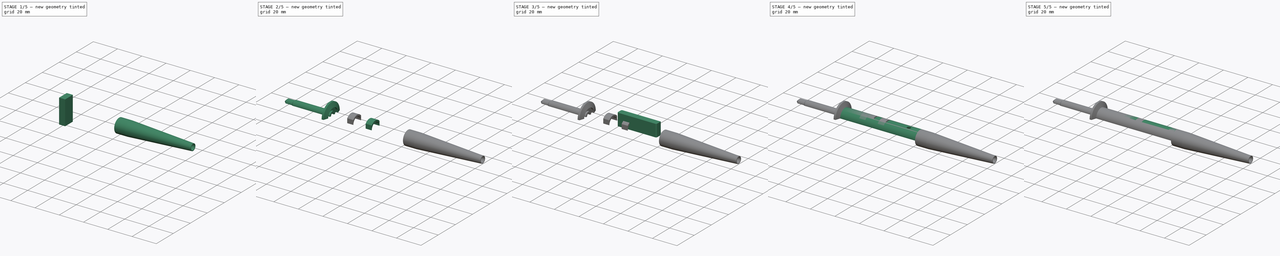
[diagram: build sequence overview — one tinted view per stage of 5, left to right]
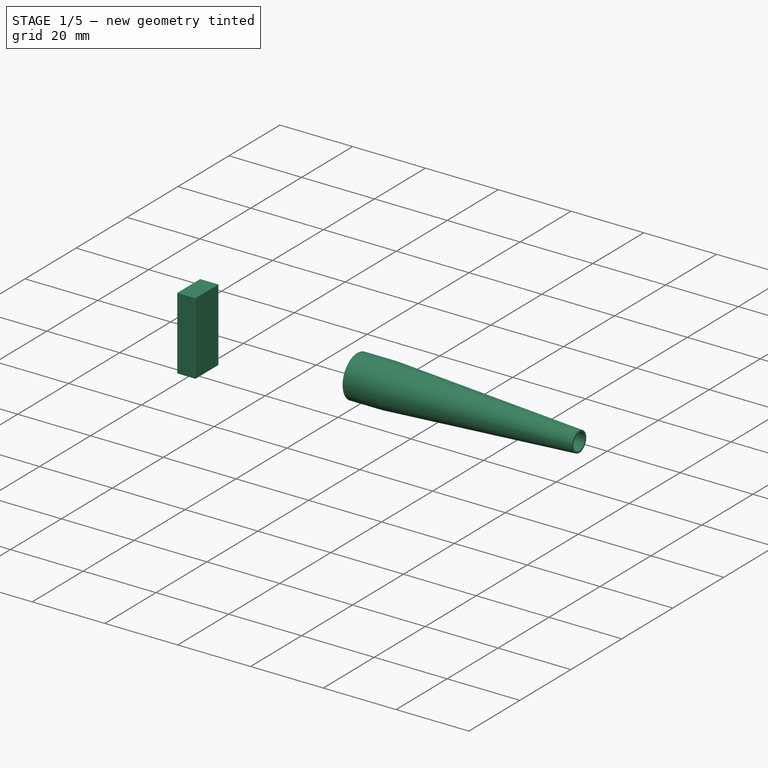
[diagram: stage 1 of 5 — iso view after this stage's code; geometry added in this stage tinted green]
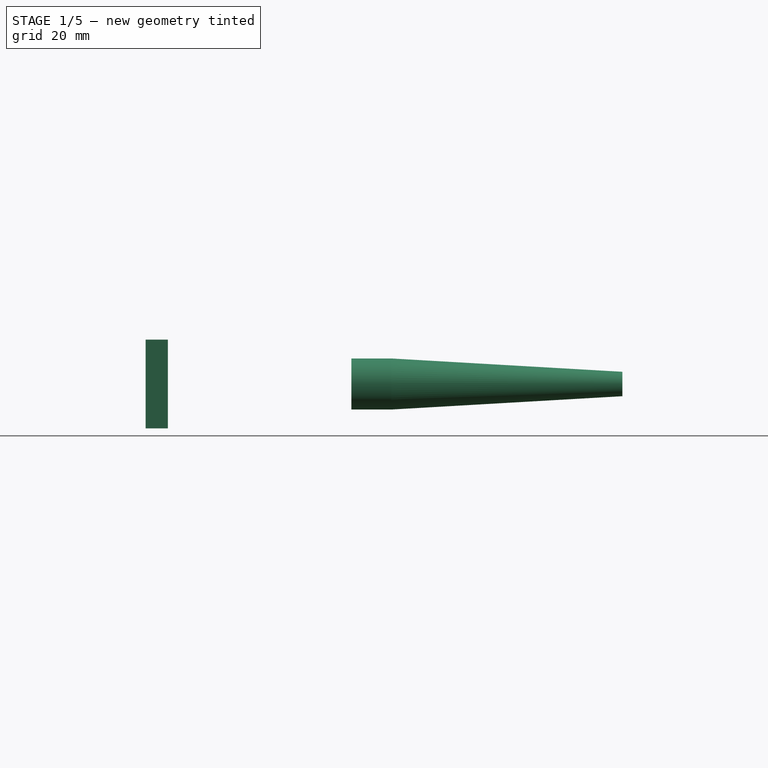
[diagram: stage 1 of 5 — front view after this stage's code; geometry added in this stage tinted green]
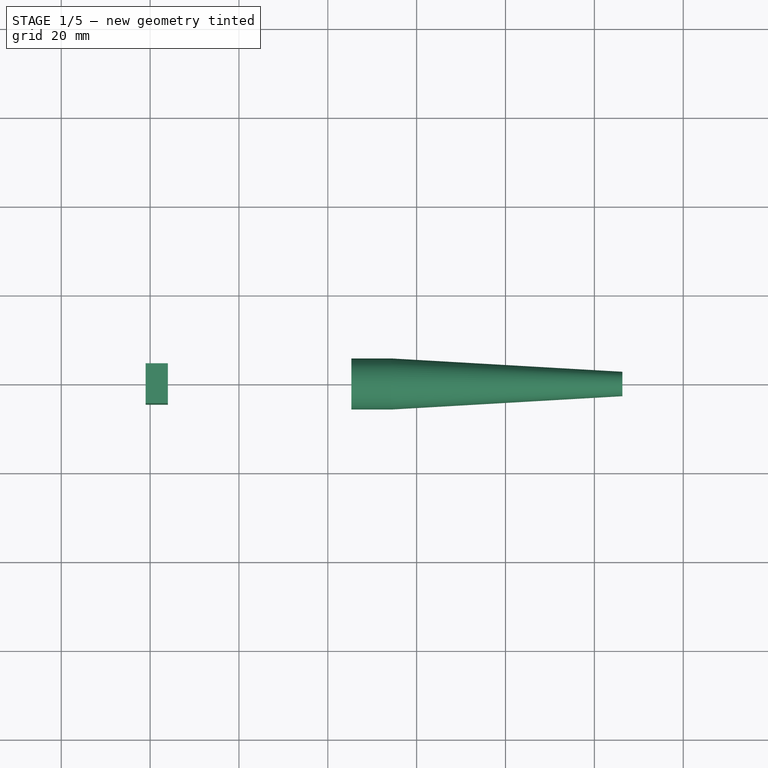
[diagram: stage 1 of 5 — top view after this stage's code; geometry added in this stage tinted green]
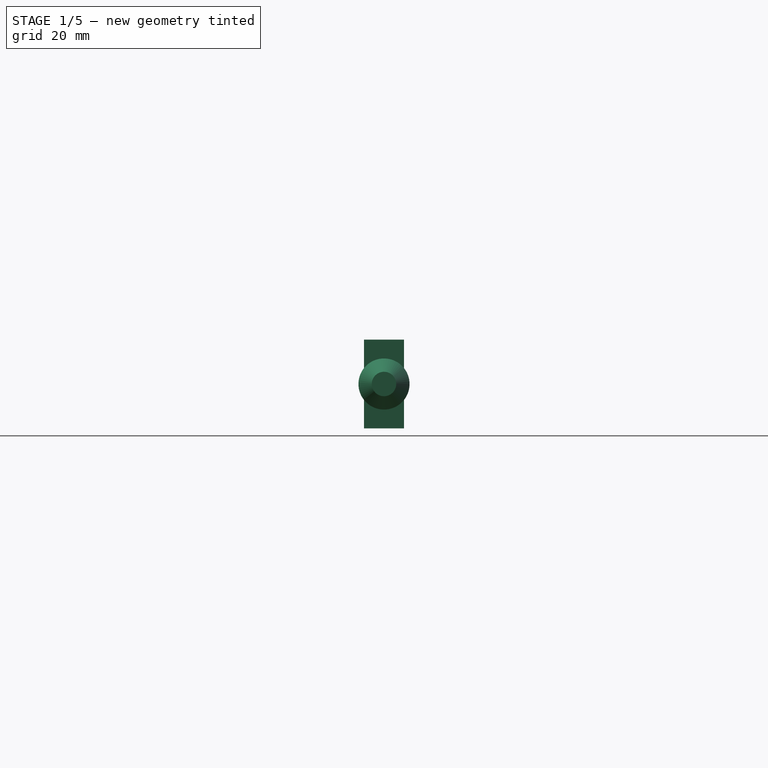
[diagram: stage 1 of 5 — right view after this stage's code; geometry added in this stage tinted green]
FCSTD DOCUMENT  (FreeCAD 0.19R24291 (Git))
Label: FlukeProbe040_Final
License: All rights reserved
LicenseURL: http://en.wikipedia.org/wiki/All_rights_reserved
objects: Sketcher::SketchObject×13, PartDesign::Body×12, PartDesign::Revolution×6, PartDesign::Pad×6, PartDesign::Boolean×6, PartDesign::Fillet×6, PartDesign::Pocket×1
note: 69 computed .brp shape members not serialized (recipe doc carries the construction recipe); baked Part::Feature solids carry a one-line shape summary decoded from their .brp

FEATURE [PartDesign::Body] Body009  label="BoolRED001"
  Group = -> [Sketch008,Pad003]
  Origin = -> Origin008
  Tip = -> Pad003
FEATURE [Sketcher::SketchObject] Sketch009
  FullyConstrained = true
  MapMode = 5
  Support = -> [XY_Plane010]
  sketch-geometry (4):
    g0: LineSegment StartX=19 StartY=4.5 StartZ=0 EndX=24 EndY=4.5 EndZ=0
    g1: LineSegment StartX=24 StartY=4.5 StartZ=0 EndX=24 EndY=-4.5 EndZ=0
    g2: LineSegment StartX=24 StartY=-4.5 StartZ=0 EndX=19 EndY=-4.5 EndZ=0
    g3: LineSegment StartX=19 StartY=-4.5 StartZ=0 EndX=19 EndY=4.5 EndZ=0
  constraints (11):
    c: Coincident(g0,g1)
    c: Coincident(g1,g2)
    c: Coincident(g2,g3)
    c: Coincident(g3,g0)
    c: Horizontal(g0)
    c: Horizontal(g2)
    c: Vertical(g1)
    c: DistanceX(g0,g0) = 5
    c: Symmetric(g0,g2,g-1)
    c: DistanceX(g-1,g0) = 19
    c: DistanceY(g1,g0) = 9
FEATURE [PartDesign::Pad] Pad004
  Direction = (1,1,1)
  Length = 10
  Length2 = 10
  Profile = -> Sketch009
  Type = 4
FEATURE [PartDesign::Body] Body007  label="RedWindow"
  Group = -> [Sketch007,Revolution003,Boolean004,Boolean003]
  Origin = -> Origin007
  Placement = pos=(0,0,0) rot=(1,0,0;3.14159rad)
  Tip = -> Boolean003
FEATURE [Sketcher::SketchObject] Sketch010
  FullyConstrained = false
  MapMode = 5
  Support = -> [XY_Plane012]
  sketch-geometry (9):
    g0: LineSegment StartX=4.34286 StartY=5.75 StartZ=0 EndX=65.3429 EndY=5.75 EndZ=0
    g1: LineSegment StartX=65.3429 StartY=5.75 StartZ=0 EndX=65.3429 EndY=3 EndZ=0
    g2: LineSegment StartX=2.8205 StartY=4.49803 StartZ=0 EndX=64.3429 EndY=4.5 EndZ=0
    g3: LineSegment StartX=64.3429 StartY=4.5 StartZ=0 EndX=64.3429 EndY=2 EndZ=0
    g4: LineSegment StartX=65.3429 StartY=3 StartZ=0 EndX=74.3429 EndY=3 EndZ=0
    g5: LineSegment StartX=74.3429 StartY=3 StartZ=0 EndX=74.3429 EndY=2 EndZ=0
    g6: LineSegment StartX=74.3429 StartY=2 StartZ=0 EndX=64.3429 EndY=2 EndZ=0
    g7: LineSegment StartX=4.34286 StartY=5.75 StartZ=0 EndX=2.79677 EndY=5.70723 EndZ=0
    g8: LineSegment StartX=2.79677 StartY=5.70723 StartZ=0 EndX=2.8205 EndY=4.49803 EndZ=0
  constraints (2):
    c: Coincident(g7,g8)
    c: Coincident(g8,g2)
FEATURE [PartDesign::Revolution] Revolution004
  Angle = 180
  Axis = (1,0,0)
  Base = (0,0,0)
  Profile = -> Sketch010
  ReferenceAxis = -> X_Axis010
FEATURE [Sketcher::SketchObject] Sketch012
  FullyConstrained = true
  MapMode = 5
  Support = -> [XY_Plane013]
  sketch-geometry (4):
    g0: LineSegment StartX=19 StartY=4.5 StartZ=0 EndX=24 EndY=4.5 EndZ=0
    g1: LineSegment StartX=24 StartY=4.5 StartZ=0 EndX=24 EndY=-4.5 EndZ=0
    g2: LineSegment StartX=24 StartY=-4.5 StartZ=0 EndX=19 EndY=-4.5 EndZ=0
    g3: LineSegment StartX=19 StartY=-4.5 StartZ=0 EndX=19 EndY=4.5 EndZ=0
  constraints (11):
    c: Coincident(g0,g1)
    c: Coincident(g1,g2)
    c: Coincident(g2,g3)
    c: Coincident(g3,g0)
    c: Horizontal(g0)
    c: Horizontal(g2)
    c: Vertical(g1)
    c: DistanceX(g0,g0) = 5
    c: Symmetric(g0,g2,g-1)
    c: DistanceX(g-1,g0) = 19
    c: DistanceY(g1,g0) = 9
FEATURE [PartDesign::Pad] Pad006
  Direction = (1,1,1)
  Length = 10
  Length2 = 10
  Profile = -> Sketch012
  Type = 4
FEATURE [PartDesign::Body] Body011  label="BoolGRN002"
  Group = -> [Sketch012,Pad006]
  Origin = -> Origin012
  Tip = -> Pad006
FEATURE [PartDesign::Boolean] Boolean006  label="GreenWindowBool"
  BaseFeature = -> Revolution004
  Group = -> [Body011]
  Type = 2
FEATURE [PartDesign::Body] Body010  label="GreenWindow"
  Group = -> [Sketch010,Revolution004,Boolean006]
  Origin = -> Origin010
  Placement = pos=(0,0,0) rot=(1,0,0;3.14159rad)
  Tip = -> Boolean006
FEATURE [Sketcher::SketchObject] Sketch013
  FullyConstrained = false
  MapMode = 5
  Support = -> [XY_Plane014]
  sketch-geometry (7):
    g0: LineSegment StartX=65.3 StartY=3 StartZ=0 EndX=65.3 EndY=5.75 EndZ=0
    g1: LineSegment StartX=65.3 StartY=5.75 StartZ=0 EndX=74.2774 EndY=5.75 EndZ=0
    g2: LineSegment StartX=74.2774 StartY=5.75 StartZ=0 EndX=126.3 EndY=2.75 EndZ=0
    g3: LineSegment StartX=126.3 StartY=2.75 StartZ=0 EndX=126.3 EndY=2.25 EndZ=0
    g4: LineSegment StartX=126.3 StartY=2.25 StartZ=0 EndX=109.936 EndY=2.25 EndZ=0
    g5: LineSegment StartX=109.936 StartY=2.25 StartZ=0 EndX=74.2774 EndY=3 EndZ=0
    g6: LineSegment StartX=74.2774 StartY=3 StartZ=0 EndX=65.3 EndY=3 EndZ=0
  constraints (19):
    c: Vertical(g0)
    c: Coincident(g0,g1)
    c: Horizontal(g1)
    c: Coincident(g1,g2)
    c: Coincident(g2,g3)
    c: Coincident(g3,g4)
    c: Horizontal(g4)
    c: Coincident(g4,g5)
    c: Coincident(g5,g6)
    c: Coincident(g6,g0)
    c: Horizontal(g6)
    c: DistanceY(g-1,g0) = 3
    c: DistanceY(g-1,g0) = 5.75
    c: DistanceX(g-1,g0) = 65.3
    c: DistanceX(g1,g5) = 0
    c: DistanceY(g-1,g3) = 2.25
    c: DistanceX(g2,g3) = 0
    c: DistanceX(g0,g2) = 61
    c: DistanceY(g3,g2) = 0.5
FEATURE [PartDesign::Revolution] Revolution005
  Angle = 360
  Axis = (1,0,0)
  Base = (0,0,0)
  Profile = -> Sketch013
  ReferenceAxis = -> X_Axis013
FEATURE [PartDesign::Body] Body012  label="CableGuide"
  Group = -> [Sketch013,Revolution005]
  Origin = -> Origin013
  Tip = -> Revolution005
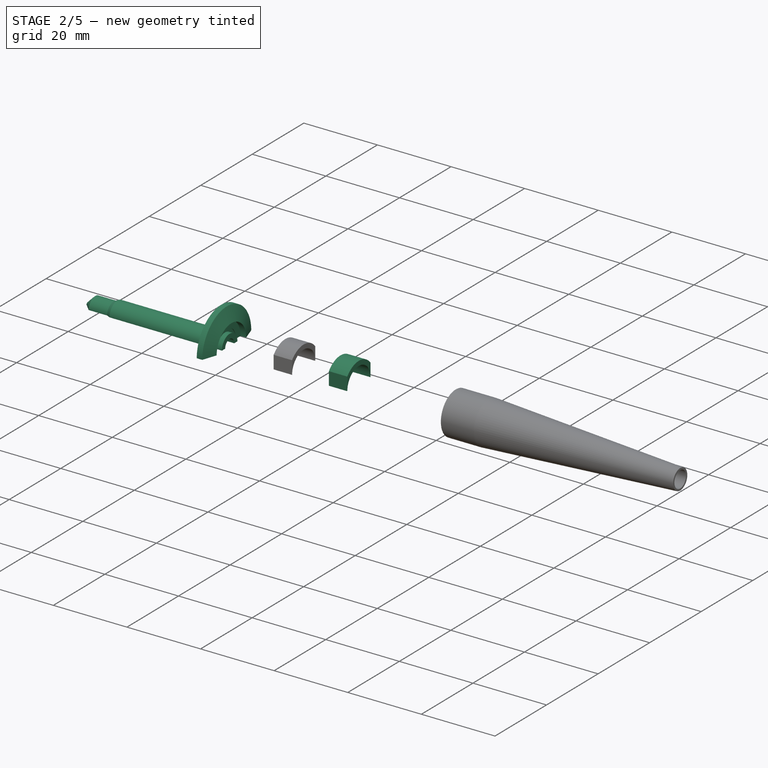
[diagram: stage 2 of 5 — iso view after this stage's code; geometry added in this stage tinted green]
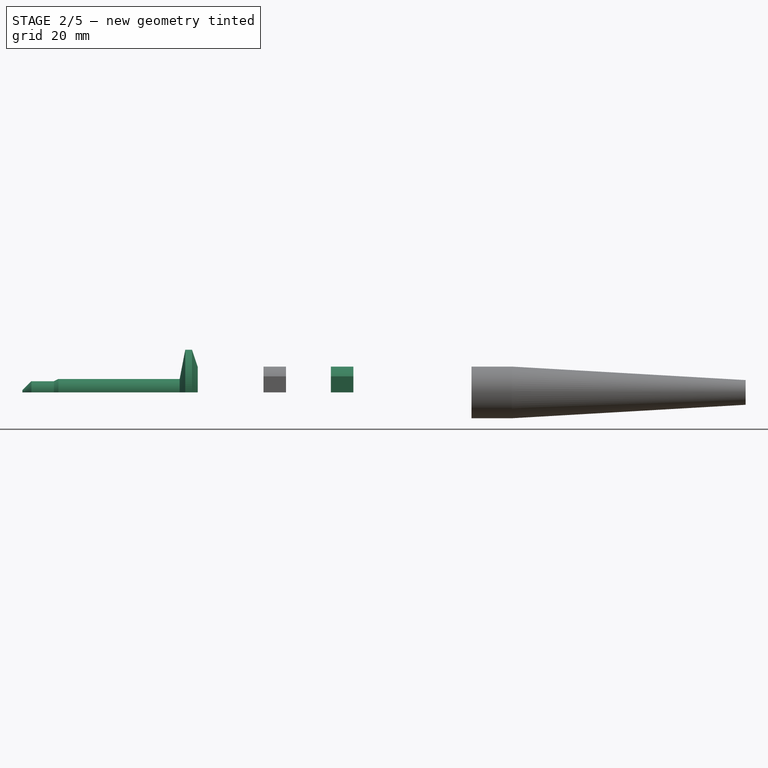
[diagram: stage 2 of 5 — front view after this stage's code; geometry added in this stage tinted green]
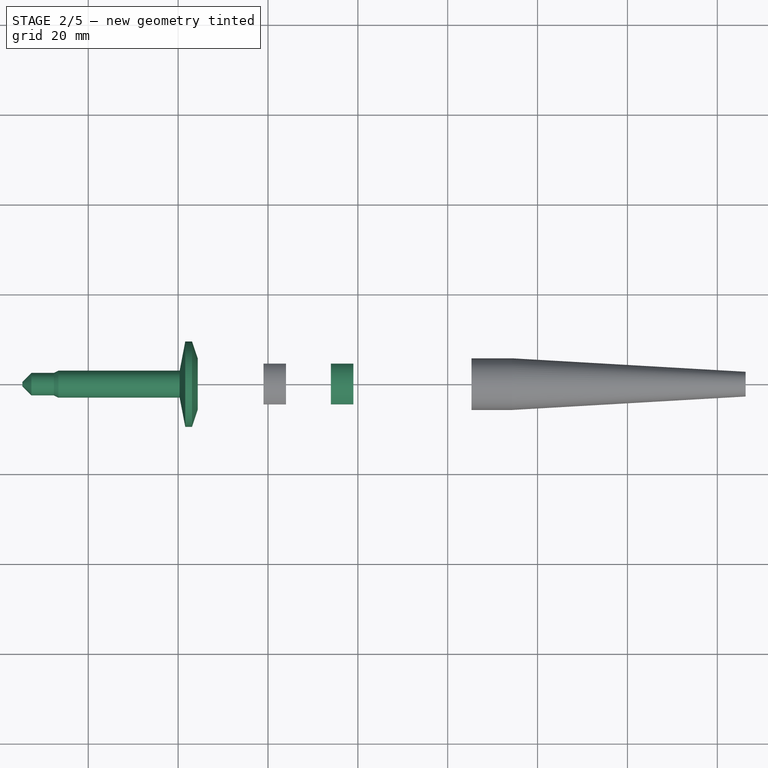
[diagram: stage 2 of 5 — top view after this stage's code; geometry added in this stage tinted green]
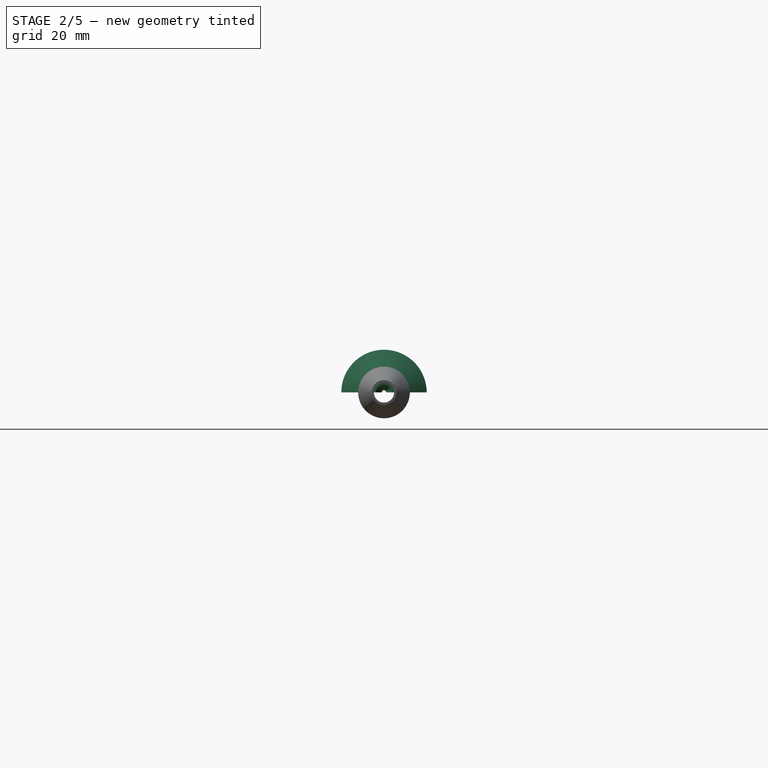
[diagram: stage 2 of 5 — right view after this stage's code; geometry added in this stage tinted green]
FEATURE [Sketcher::SketchObject] Sketch001
  FullyConstrained = false
  MapMode = 5
  Support = -> [XY_Plane002]
  sketch-geometry (16):
    g0: LineSegment StartX=-34.6571 StartY=0.5 StartZ=0 EndX=-32.6571 EndY=2.5 EndZ=0
    g1: LineSegment StartX=-27.6571 StartY=2.5 StartZ=0 EndX=-26.6571 EndY=3 EndZ=0
    g2: LineSegment StartX=-26.6571 StartY=3 StartZ=0 EndX=0.342857 EndY=3 EndZ=0
    g3: LineSegment StartX=0.342857 StartY=3 StartZ=0 EndX=1.59286 EndY=9.5 EndZ=0
    g4: LineSegment StartX=1.59286 StartY=9.5 StartZ=0 EndX=3.09286 EndY=9.5 EndZ=0
    g5: LineSegment StartX=3.09286 StartY=9.5 StartZ=0 EndX=4.35759 EndY=5.71776 EndZ=0
    g6: LineSegment StartX=-34.6571 StartY=0.5 StartZ=0 EndX=-26.8203 EndY=0.5 EndZ=0
    g7: LineSegment StartX=-26.8203 StartY=0.5 StartZ=0 EndX=-24.3203 EndY=1.75 EndZ=0
    g8: LineSegment StartX=-24.3203 StartY=1.75 StartZ=0 EndX=3.89419 EndY=1.75 EndZ=0
    g9: LineSegment StartX=3.89419 StartY=1.75 StartZ=0 EndX=3.89419 EndY=3 EndZ=0
    g10: LineSegment StartX=3.89419 StartY=3 StartZ=0 EndX=2.64252 EndY=3 EndZ=0
    g11: LineSegment StartX=2.64252 StartY=3 StartZ=0 EndX=2.64252 EndY=3.94243 EndZ=0
    g12: LineSegment StartX=2.64252 StartY=3.94243 StartZ=0 EndX=2.84201 EndY=3.94243 EndZ=0
    g13: LineSegment StartX=-32.6571 StartY=2.5 StartZ=0 EndX=-27.6571 EndY=2.5 EndZ=0
    g14: LineSegment StartX=2.84201 StartY=5.71776 StartZ=0 EndX=4.35759 EndY=5.71776 EndZ=0
    g15: LineSegment StartX=2.84201 StartY=3.94243 StartZ=0 EndX=2.84201 EndY=5.71776 EndZ=0
  constraints (1):
    c: Coincident(g14,g5)
FEATURE [PartDesign::Revolution] Revolution001
  Angle = 180
  Axis = (1,0,0)
  Base = (0,0,0)
  Profile = -> Sketch001
  ReferenceAxis = -> X_Axis002
FEATURE [PartDesign::Body] Body002  label="Front"
  Group = -> [Sketch001,Revolution001,Fillet005]
  Origin = -> Origin002
  Placement = pos=(0,0,0) rot=(1,0,0;3.14159rad)
  Tip = -> Fillet005
FEATURE [Sketcher::SketchObject] Sketch007
  FullyConstrained = false
  MapMode = 5
  Support = -> [XY_Plane009]
  sketch-geometry (9):
    g0: LineSegment StartX=4.34286 StartY=5.75 StartZ=0 EndX=65.3429 EndY=5.75 EndZ=0
    g1: LineSegment StartX=65.3429 StartY=5.75 StartZ=0 EndX=65.3429 EndY=3 EndZ=0
    g2: LineSegment StartX=2.8205 StartY=4.49803 StartZ=0 EndX=64.3429 EndY=4.5 EndZ=0
    g3: LineSegment StartX=64.3429 StartY=4.5 StartZ=0 EndX=64.3429 EndY=2 EndZ=0
    g4: LineSegment StartX=65.3429 StartY=3 StartZ=0 EndX=74.3429 EndY=3 EndZ=0
    g5: LineSegment StartX=74.3429 StartY=3 StartZ=0 EndX=74.3429 EndY=2 EndZ=0
    g6: LineSegment StartX=74.3429 StartY=2 StartZ=0 EndX=64.3429 EndY=2 EndZ=0
    g7: LineSegment StartX=4.34286 StartY=5.75 StartZ=0 EndX=2.79677 EndY=5.70723 EndZ=0
    g8: LineSegment StartX=2.79677 StartY=5.70723 StartZ=0 EndX=2.8205 EndY=4.49803 EndZ=0
  constraints (2):
    c: Coincident(g7,g8)
    c: Coincident(g8,g2)
FEATURE [Sketcher::SketchObject] Sketch008
  FullyConstrained = true
  MapMode = 5
  Support = -> [XY_Plane008]
  sketch-geometry (4):
    g0: LineSegment StartX=34 StartY=4.5 StartZ=0 EndX=39 EndY=4.5 EndZ=0
    g1: LineSegment StartX=39 StartY=4.5 StartZ=0 EndX=39 EndY=-4.5 EndZ=0
    g2: LineSegment StartX=39 StartY=-4.5 StartZ=0 EndX=34 EndY=-4.5 EndZ=0
    g3: LineSegment StartX=34 StartY=-4.5 StartZ=0 EndX=34 EndY=4.5 EndZ=0
  constraints (11):
    c: Coincident(g0,g1)
    c: Coincident(g1,g2)
    c: Coincident(g2,g3)
    c: Coincident(g3,g0)
    c: Horizontal(g0)
    c: Horizontal(g2)
    c: Vertical(g1)
    c: DistanceX(g0,g0) = 5
    c: DistanceY(g1,g0) = 9
    c: Symmetric(g0,g2,g-1)
    c: DistanceX(g-1,g0) = 34
FEATURE [PartDesign::Pad] Pad003
  Direction = (1,1,1)
  Length = 10
  Length2 = 10
  Profile = -> Sketch008
  Type = 4
FEATURE [PartDesign::Revolution] Revolution003
  Angle = 180
  Axis = (1,0,0)
  Base = (0,0,0)
  Profile = -> Sketch007
  ReferenceAxis = -> X_Axis007
FEATURE [PartDesign::Body] Body008  label="BoolGRN001"
  Group = -> [Sketch009,Pad004]
  Origin = -> Origin009
  Tip = -> Pad004
FEATURE [PartDesign::Boolean] Boolean004
  BaseFeature = -> Revolution003
  Group = -> [Body008]
  Type = 1
FEATURE [PartDesign::Boolean] Boolean003  label="RedWindowBool"
  BaseFeature = -> Boolean004
  Group = -> [Body009]
  Type = 2
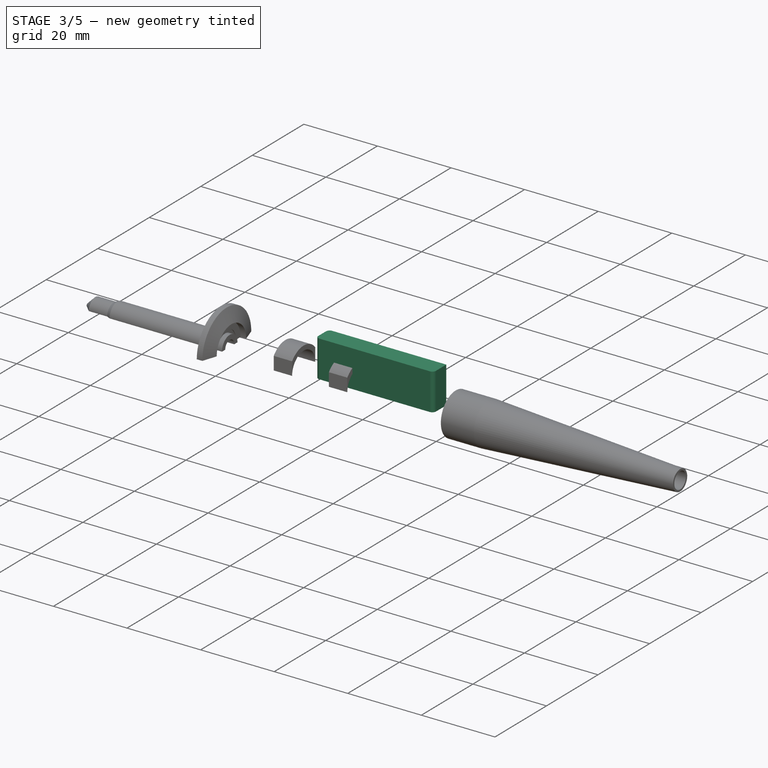
[diagram: stage 3 of 5 — iso view after this stage's code; geometry added in this stage tinted green]
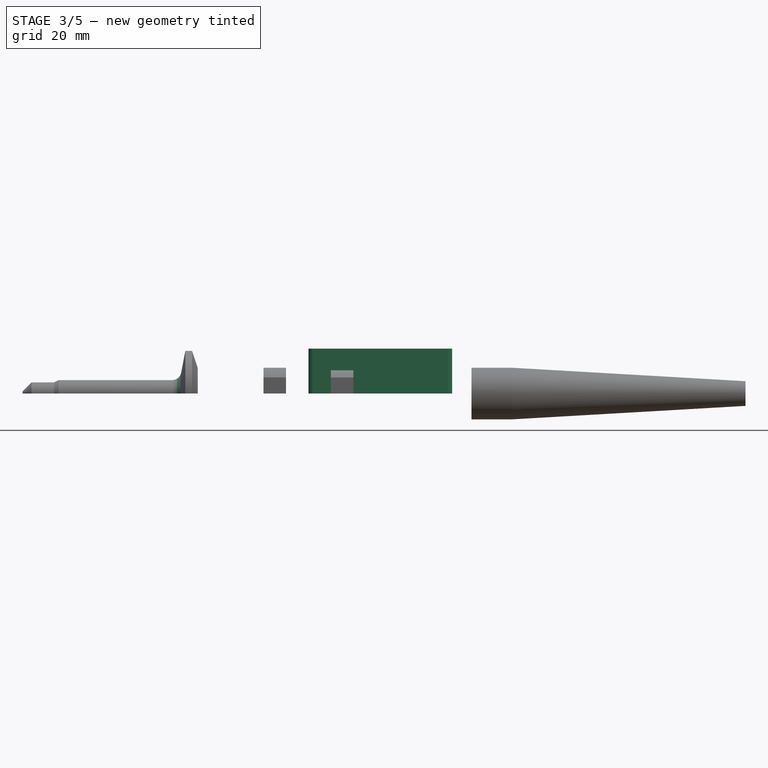
[diagram: stage 3 of 5 — front view after this stage's code; geometry added in this stage tinted green]
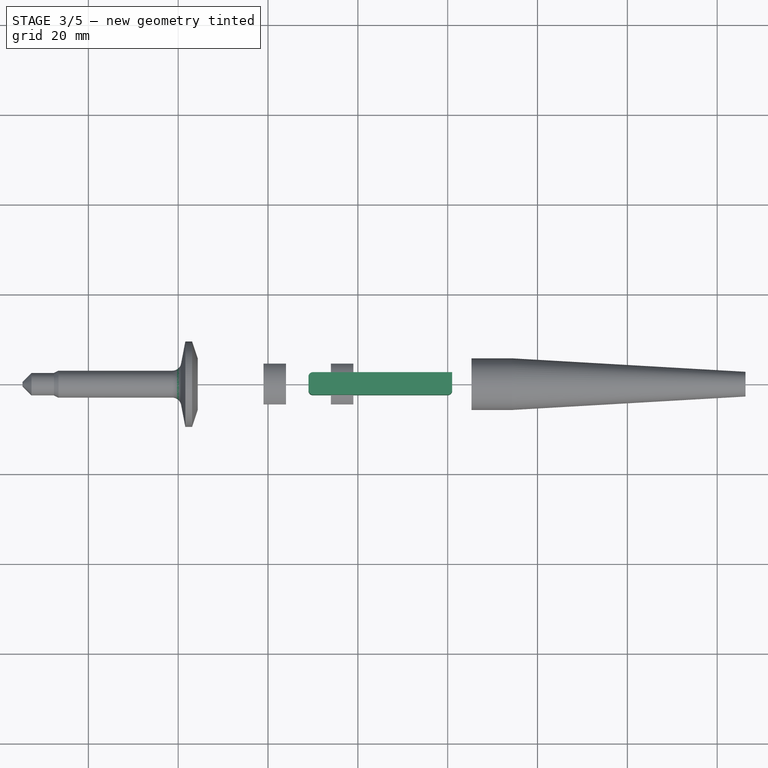
[diagram: stage 3 of 5 — top view after this stage's code; geometry added in this stage tinted green]
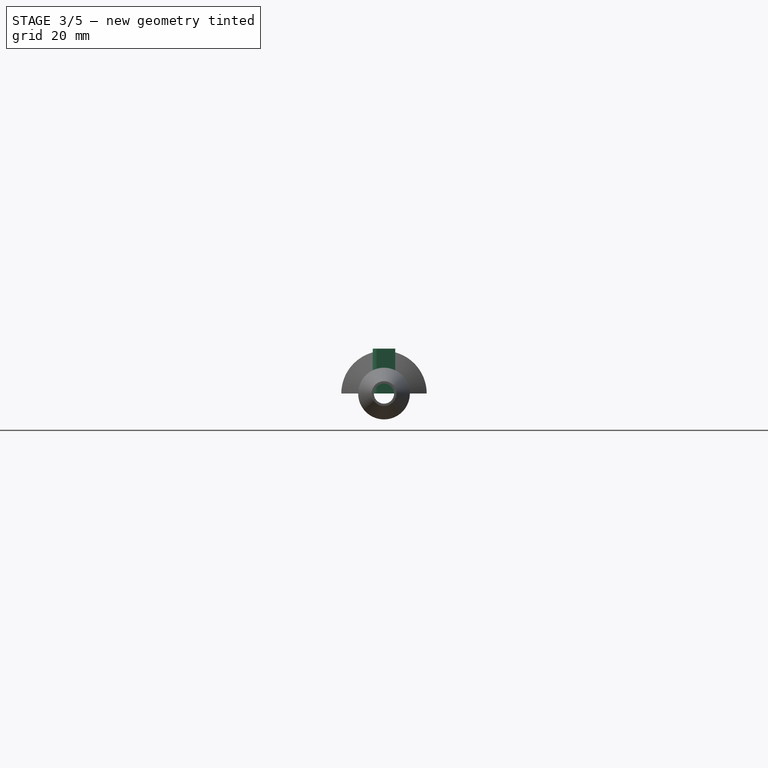
[diagram: stage 3 of 5 — right view after this stage's code; geometry added in this stage tinted green]
FEATURE [PartDesign::Body] Body003  label="Back"
  Group = -> [Sketch002,Revolution002,Boolean,Boolean001]
  Origin = -> Origin003
  Placement = pos=(0,0,0) rot=(1,0,0;3.14159rad)
  Tip = -> Boolean001
FEATURE [Sketcher::SketchObject] Sketch005
  FullyConstrained = true
  MapMode = 5
  Support = -> [XY_Plane007]
  sketch-geometry (4):
    g0: LineSegment StartX=29 StartY=2.5 StartZ=0 EndX=61 EndY=2.5 EndZ=0
    g1: LineSegment StartX=61 StartY=2.5 StartZ=0 EndX=61 EndY=-2.5 EndZ=0
    g2: LineSegment StartX=61 StartY=-2.5 StartZ=0 EndX=29 EndY=-2.5 EndZ=0
    g3: LineSegment StartX=29 StartY=-2.5 StartZ=0 EndX=29 EndY=2.5 EndZ=0
  constraints (11):
    c: Coincident(g0,g1)
    c: Coincident(g1,g2)
    c: Coincident(g2,g3)
    c: Coincident(g3,g0)
    c: Horizontal(g0)
    c: Horizontal(g2)
    c: Vertical(g1)
    c: Symmetric(g0,g2,g-1)
    c: DistanceY(g1,g0) = 5
    c: DistanceX(g0,g0) = 32
    c: DistanceX(g-1,g0) = 29
FEATURE [PartDesign::Pad] Pad002
  Direction = (1,1,1)
  Length = 10
  Length2 = 100
  Profile = -> Sketch005
  Type = 0
FEATURE [PartDesign::Fillet] Fillet
  Base = -> Pad002 [Edge8]
  BaseFeature = -> Pad002
  Radius = 1
  SupportTransform = false
FEATURE [PartDesign::Fillet] Fillet001
  Base = -> Fillet [Edge15]
  BaseFeature = -> Fillet
  Radius = 1
  SupportTransform = false
FEATURE [PartDesign::Fillet] Fillet002
  Base = -> Fillet001 [Edge16]
  BaseFeature = -> Fillet001
  Radius = 1
  SupportTransform = false
FEATURE [PartDesign::Body] Body  label="Half"
  Group = -> [Sketch,Revolution,Boolean002,Sketch006,Pocket,Fillet004]
  Origin = -> Origin
  Tip = -> Fillet004
FEATURE [PartDesign::Fillet] Fillet005
  Base = -> Revolution001 [Edge14]
  BaseFeature = -> Revolution001
  Radius = 2
  SupportTransform = false
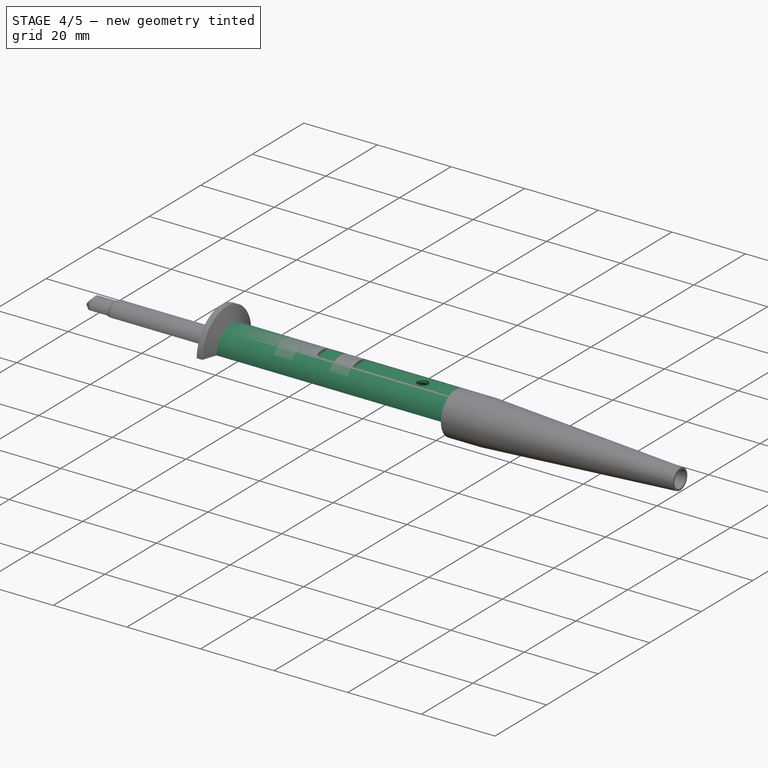
[diagram: stage 4 of 5 — iso view after this stage's code; geometry added in this stage tinted green]
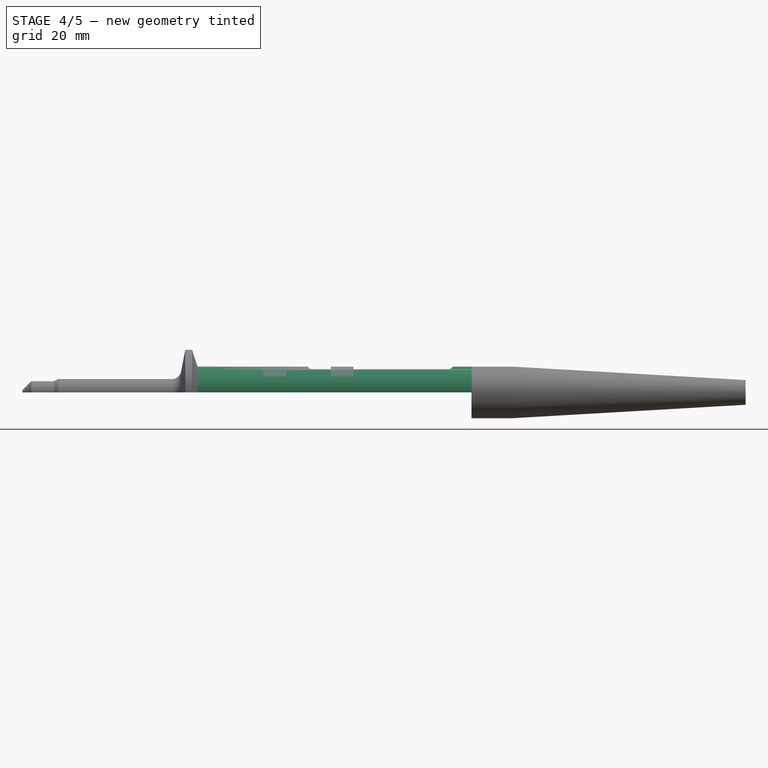
[diagram: stage 4 of 5 — front view after this stage's code; geometry added in this stage tinted green]
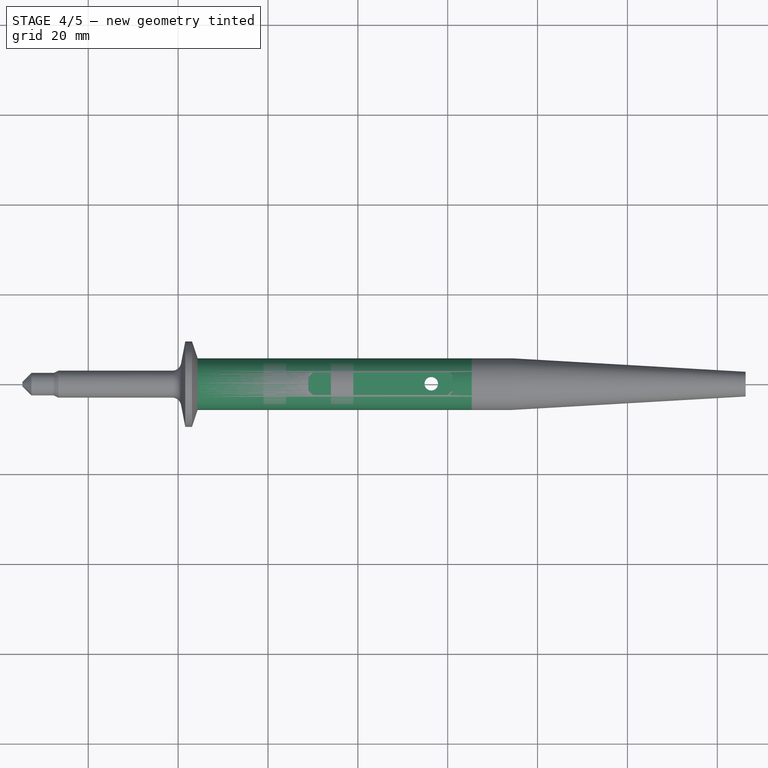
[diagram: stage 4 of 5 — top view after this stage's code; geometry added in this stage tinted green]
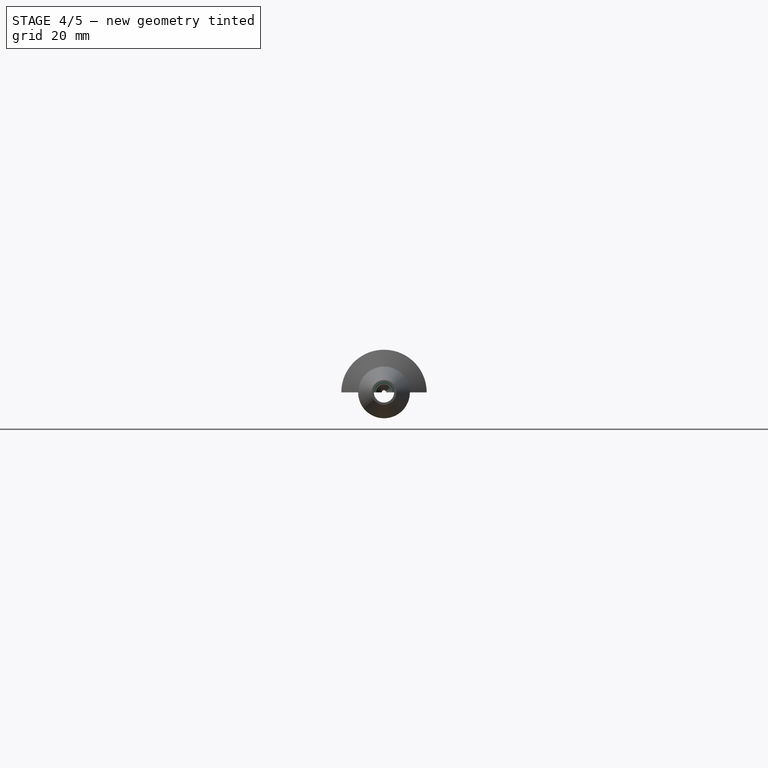
[diagram: stage 4 of 5 — right view after this stage's code; geometry added in this stage tinted green]
FEATURE [Sketcher::SketchObject] Sketch
  FullyConstrained = false
  MapMode = 5
  Support = -> [XY_Plane]
  sketch-geometry (22):
    g0: LineSegment StartX=-34.6571 StartY=0.5 StartZ=0 EndX=-32.6571 EndY=2.5 EndZ=0
    g1: LineSegment StartX=-27.6571 StartY=2.5 StartZ=0 EndX=-26.6571 EndY=3 EndZ=0
    g2: LineSegment StartX=-26.6571 StartY=3 StartZ=0 EndX=0.342857 EndY=3 EndZ=0
    g3: LineSegment StartX=0.342857 StartY=3 StartZ=0 EndX=1.59286 EndY=9.5 EndZ=0
    g4: LineSegment StartX=1.59286 StartY=9.5 StartZ=0 EndX=3.09286 EndY=9.5 EndZ=0
    g5: LineSegment StartX=3.09286 StartY=9.5 StartZ=0 EndX=4.34286 EndY=5.75 EndZ=0
    g6: LineSegment StartX=4.34286 StartY=5.75 StartZ=0 EndX=65.3429 EndY=5.75 EndZ=0
    g7: LineSegment StartX=65.3429 StartY=5.75 StartZ=0 EndX=65.3429 EndY=3 EndZ=0
    g8: LineSegment StartX=-34.6571 StartY=0.5 StartZ=0 EndX=-26.8203 EndY=0.5 EndZ=0
    g9: LineSegment StartX=-26.8203 StartY=0.5 StartZ=0 EndX=-24.3203 EndY=1.75 EndZ=0
    g10: LineSegment StartX=-24.3203 StartY=1.75 StartZ=0 EndX=3.89419 EndY=1.75 EndZ=0
    g11: LineSegment StartX=3.89419 StartY=1.75 StartZ=0 EndX=3.89419 EndY=3 EndZ=0
    g12: LineSegment StartX=3.89419 StartY=3 StartZ=0 EndX=2.64252 EndY=3 EndZ=0
    g13: LineSegment StartX=2.64252 StartY=3 StartZ=0 EndX=2.64252 EndY=3.94243 EndZ=0
    g14: LineSegment StartX=2.64252 StartY=3.94243 StartZ=0 EndX=2.84201 EndY=3.94243 EndZ=0
    g15: LineSegment StartX=2.84201 StartY=3.94243 StartZ=0 EndX=2.84201 EndY=4.5 EndZ=0
    g16: LineSegment StartX=2.84201 StartY=4.5 StartZ=0 EndX=64.3429 EndY=4.5 EndZ=0
    g17: LineSegment StartX=64.3429 StartY=4.5 StartZ=0 EndX=64.3429 EndY=2 EndZ=0
    g18: LineSegment StartX=65.3429 StartY=3 StartZ=0 EndX=74.3429 EndY=3 EndZ=0
    g19: LineSegment StartX=74.3429 StartY=3 StartZ=0 EndX=74.3429 EndY=2 EndZ=0
    g20: LineSegment StartX=74.3429 StartY=2 StartZ=0 EndX=64.3429 EndY=2 EndZ=0
    g21: LineSegment StartX=-32.6571 StartY=2.5 StartZ=0 EndX=-27.6571 EndY=2.5 EndZ=0
  constraints (60):
    c: Coincident(g1,g2)
    c: Coincident(g2,g3)
    c: Coincident(g21,g1)
    c: Coincident(g7,g18)
    c: Coincident(g17,g16)
    c: Coincident(g16,g15)
    c: Coincident(g14,g15)
    c: Coincident(g13,g14)
    c: Coincident(g12,g13)
    c: Coincident(g11,g12)
    c: Coincident(g10,g11)
    c: Coincident(g9,g10)
    c: Coincident(g8,g9)
    c: Coincident(g0,g21)
    c: Coincident(g0,g8)
    c: Coincident(g3,g4)
    c: Coincident(g4,g5)
    c: Coincident(g5,g6)
    c: Coincident(g6,g7)
    c: Coincident(g18,g19)
    c: Coincident(g19,g20)
    c: Coincident(g17,g20)
    c: DistanceY(g8,g0) = 0
    c: DistanceY(g1,g0) = 0
    c: DistanceY(g1,g2) = 0
    c: DistanceY(g10,g9) = 0
    c: DistanceY(g12,g11) = 0
    c: DistanceY(g13,g14) = 0
    c: DistanceY(g4,g3) = 0
    c: DistanceY(g5,g6) = 0
    c: DistanceY(g15,g16) = 0
    c: DistanceY(g17,g19) = 0
    c: DistanceY(g7,g18) = 0
    c: DistanceX(g15,g14) = 0
    c: DistanceX(g13,g12) = 0
    c: DistanceX(g11,g10) = 0
    c: DistanceX(g16,g17) = 0
    c: DistanceX(g7,g6) = 0
    c: DistanceX(g18,g19) = 0
    c: DistanceY(g-1,g0) = 0.5
    c: DistanceX(g0,g0) = 2
    c: DistanceX(g0,g1) = 5
    c: DistanceX(g1,g1) = 1
    c: Parallel(g1,g9)
    c: DistanceX(g1,g2) = 27
    c: DistanceX(g2,g5) = 4
    c: DistanceX(g3,g4) = 1.5
    c: DistanceX(g2,g3) = 1.25
    c: DistanceX(g5,g6) = 61
    c: DistanceY(g16,g6) = 1.25
    c: DistanceY(g19,g18) = 1
    c: DistanceX(g17,g7) = 1
    c: DistanceY(g17,g6) = 3.75
    c: DistanceX(g7,g18) = 9
    c: DistanceY(g-1,g0) = 2.5
    c: DistanceY(g-1,g1) = 3
    c: DistanceY(g-1,g3) = 9.5
    c: DistanceY(g-1,g5) = 5.75
    c: DistanceY(g10,g11) = 1.25
    c: DistanceY(g11,g2) = 0
FEATURE [PartDesign::Revolution] Revolution
  AllowMultiFace = false
  Angle = 180
  Axis = (1,0,0)
  Base = (0,0,0)
  Profile = -> Sketch
  ReferenceAxis = -> Sketch [H_Axis]
FEATURE [PartDesign::Fillet] Fillet003
  Base = -> Fillet002 [Edge15]
  BaseFeature = -> Fillet002
  Radius = 1
  SupportTransform = false
FEATURE [PartDesign::Body] Body006  label="BoolBACK"
  Group = -> [Sketch005,Pad002,Fillet,Fillet001,Fillet002,Fillet003]
  Origin = -> Origin006
  Placement = pos=(0,0,5) rot=(0,0,1;0rad)
  Tip = -> Fillet003
FEATURE [PartDesign::Boolean] Boolean002
  BaseFeature = -> Revolution
  Group = -> [Body006]
  Type = 1
FEATURE [Sketcher::SketchObject] Sketch006
  ExternalGeometry = -> [Boolean002]
  FullyConstrained = true
  MapMode = 5
  Placement = pos=(0,0,5) rot=(0,0,1;0rad)
  Support = -> [Boolean002]
  sketch-geometry (1):
    g0: Circle CenterX=56.3429 CenterY=0 CenterZ=0 NormalX=0 NormalY=0 NormalZ=1 AngleXU=0 Radius=1.5
  constraints (3):
    c: PointOnObject(g0,g-1)
    c: Radius(g0) = 1.5
    c: DistanceX(g0,g-3) = 9
FEATURE [PartDesign::Pocket] Pocket
  BaseFeature = -> Boolean002
  Length = 5
  Length2 = 100
  Profile = -> Sketch006
  Type = 0
FEATURE [PartDesign::Fillet] Fillet004
  Base = -> Pocket [Edge52]
  BaseFeature = -> Pocket
  Radius = 2
  SupportTransform = false
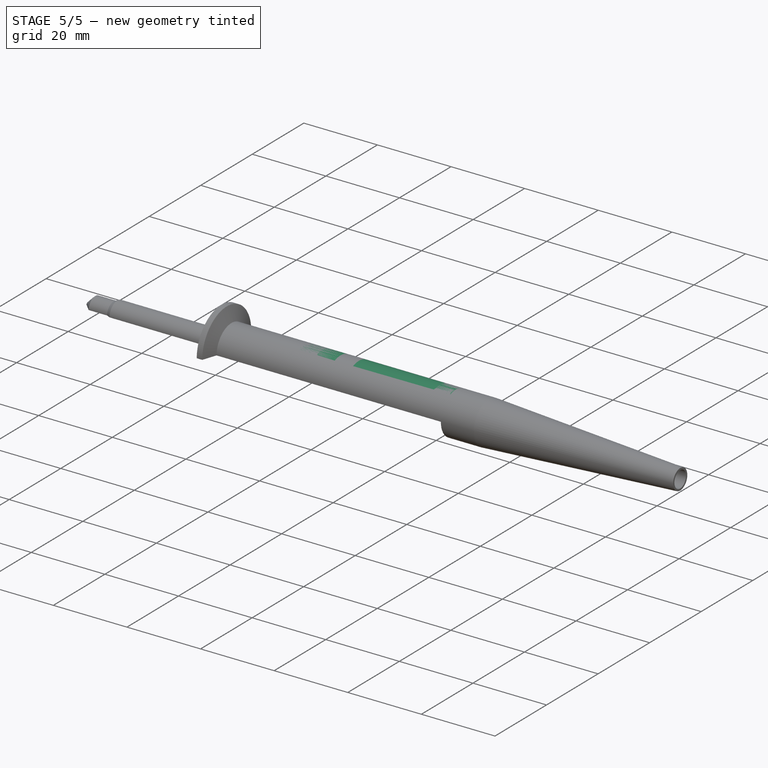
[diagram: stage 5 of 5 — iso view after this stage's code; geometry added in this stage tinted green]
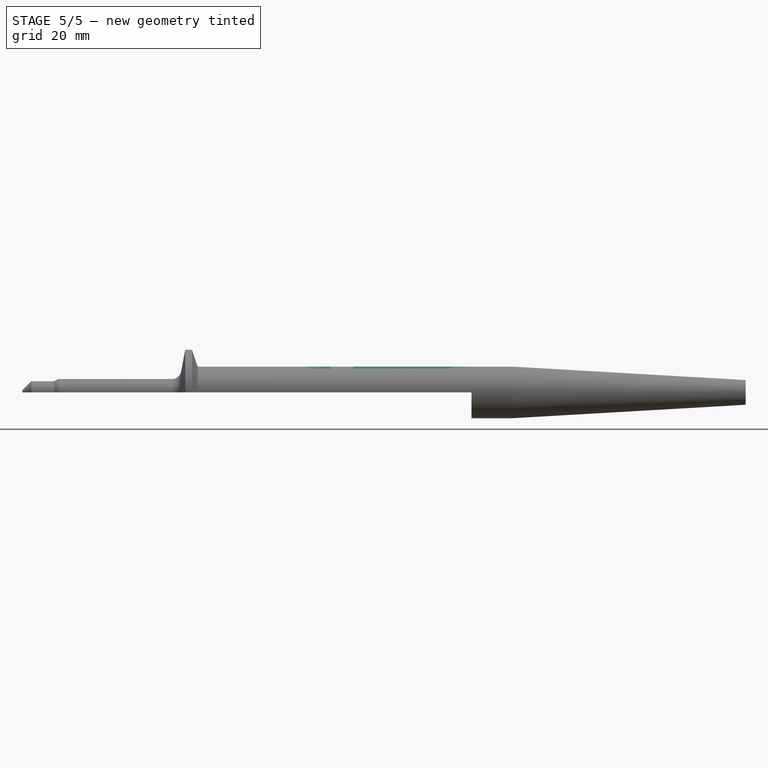
[diagram: stage 5 of 5 — front view after this stage's code; geometry added in this stage tinted green]
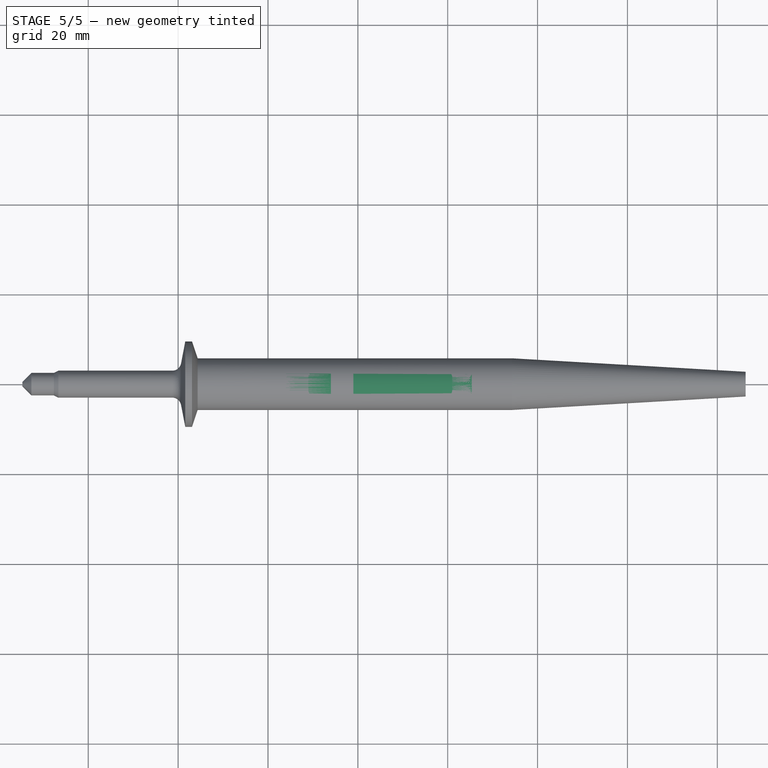
[diagram: stage 5 of 5 — top view after this stage's code; geometry added in this stage tinted green]
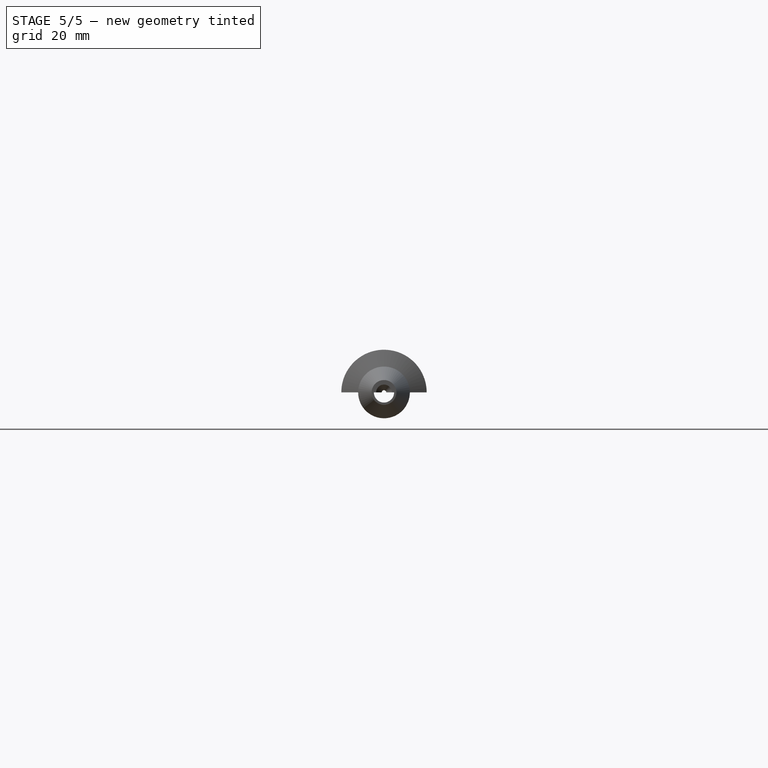
[diagram: stage 5 of 5 — right view after this stage's code; geometry added in this stage tinted green]
FEATURE [Sketcher::SketchObject] Sketch002
  FullyConstrained = false
  MapMode = 5
  Support = -> [XY_Plane004]
  sketch-geometry (9):
    g0: LineSegment StartX=4.34286 StartY=5.75 StartZ=0 EndX=65.3429 EndY=5.75 EndZ=0
    g1: LineSegment StartX=65.3429 StartY=5.75 StartZ=0 EndX=65.3429 EndY=3 EndZ=0
    g2: LineSegment StartX=2.8205 StartY=4.49803 StartZ=0 EndX=64.3429 EndY=4.5 EndZ=0
    g3: LineSegment StartX=64.3429 StartY=4.5 StartZ=0 EndX=64.3429 EndY=2 EndZ=0
    g4: LineSegment StartX=65.3429 StartY=3 StartZ=0 EndX=74.3429 EndY=3 EndZ=0
    g5: LineSegment StartX=74.3429 StartY=3 StartZ=0 EndX=74.3429 EndY=2 EndZ=0
    g6: LineSegment StartX=74.3429 StartY=2 StartZ=0 EndX=64.3429 EndY=2 EndZ=0
    g7: LineSegment StartX=4.34286 StartY=5.75 StartZ=0 EndX=2.79677 EndY=5.70723 EndZ=0
    g8: LineSegment StartX=2.79677 StartY=5.70723 StartZ=0 EndX=2.8205 EndY=4.49803 EndZ=0
  constraints (2):
    c: Coincident(g7,g8)
    c: Coincident(g8,g2)
FEATURE [PartDesign::Revolution] Revolution002
  Angle = 180
  Axis = (1,0,0)
  Base = (0,0,0)
  Profile = -> Sketch002
  ReferenceAxis = -> X_Axis003
FEATURE [Sketcher::SketchObject] Sketch003
  FullyConstrained = true
  MapMode = 5
  Support = -> [XY_Plane005]
  sketch-geometry (4):
    g0: LineSegment StartX=19 StartY=4.5 StartZ=0 EndX=24 EndY=4.5 EndZ=0
    g1: LineSegment StartX=24 StartY=4.5 StartZ=0 EndX=24 EndY=-4.5 EndZ=0
    g2: LineSegment StartX=24 StartY=-4.5 StartZ=0 EndX=19 EndY=-4.5 EndZ=0
    g3: LineSegment StartX=19 StartY=-4.5 StartZ=0 EndX=19 EndY=4.5 EndZ=0
  constraints (11):
    c: Coincident(g0,g1)
    c: Coincident(g1,g2)
    c: Coincident(g2,g3)
    c: Coincident(g3,g0)
    c: Horizontal(g0)
    c: Horizontal(g2)
    c: Vertical(g1)
    c: DistanceX(g0,g0) = 5
    c: Symmetric(g0,g2,g-1)
    c: DistanceX(g-1,g0) = 19
    c: DistanceY(g1,g0) = 9
FEATURE [PartDesign::Pad] Pad
  Direction = (1,1,1)
  Length = 10
  Length2 = 10
  Profile = -> Sketch003
  Type = 4
FEATURE [PartDesign::Body] Body004  label="BoolGRN"
  Group = -> [Sketch003,Pad]
  Origin = -> Origin004
  Tip = -> Pad
FEATURE [PartDesign::Boolean] Boolean
  BaseFeature = -> Revolution002
  Group = -> [Body004]
  Type = 1
FEATURE [Sketcher::SketchObject] Sketch004
  FullyConstrained = true
  MapMode = 5
  Support = -> [XY_Plane006]
  sketch-geometry (4):
    g0: LineSegment StartX=34 StartY=4.5 StartZ=0 EndX=39 EndY=4.5 EndZ=0
    g1: LineSegment StartX=39 StartY=4.5 StartZ=0 EndX=39 EndY=-4.5 EndZ=0
    g2: LineSegment StartX=39 StartY=-4.5 StartZ=0 EndX=34 EndY=-4.5 EndZ=0
    g3: LineSegment StartX=34 StartY=-4.5 StartZ=0 EndX=34 EndY=4.5 EndZ=0
  constraints (11):
    c: Coincident(g0,g1)
    c: Coincident(g1,g2)
    c: Coincident(g2,g3)
    c: Coincident(g3,g0)
    c: Horizontal(g0)
    c: Horizontal(g2)
    c: Vertical(g1)
    c: DistanceX(g0,g0) = 5
    c: DistanceY(g1,g0) = 9
    c: Symmetric(g0,g2,g-1)
    c: DistanceX(g-1,g0) = 34
FEATURE [PartDesign::Pad] Pad001
  Direction = (1,1,1)
  Length = 10
  Length2 = 10
  Profile = -> Sketch004
  Type = 4
FEATURE [PartDesign::Body] Body005  label="BoolRED"
  Group = -> [Sketch004,Pad001]
  Origin = -> Origin005
  Tip = -> Pad001
FEATURE [PartDesign::Boolean] Boolean001
  BaseFeature = -> Boolean
  Group = -> [Body005]
  Type = 1
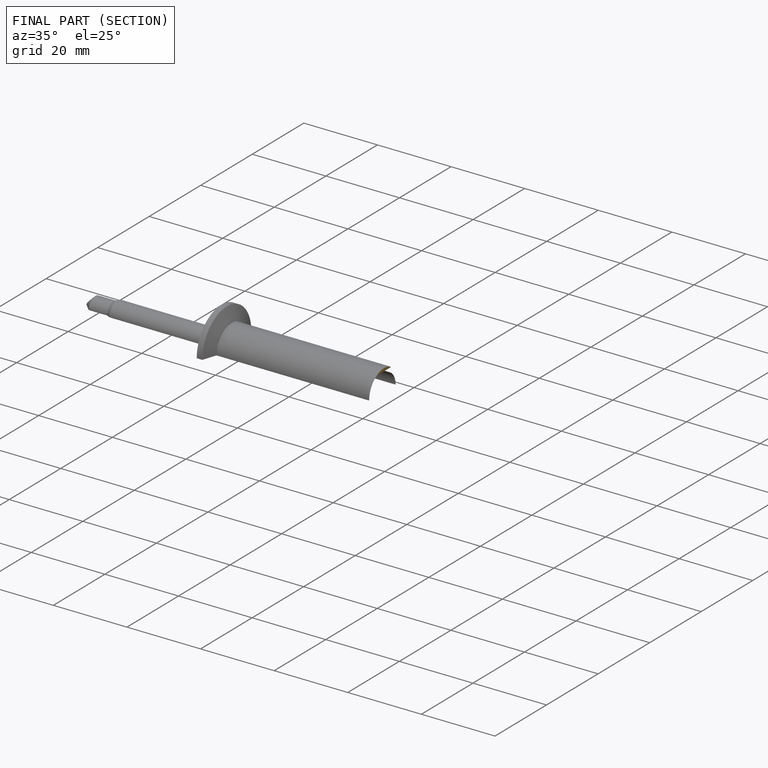
[diagram: finished part — half-section view (interior)]
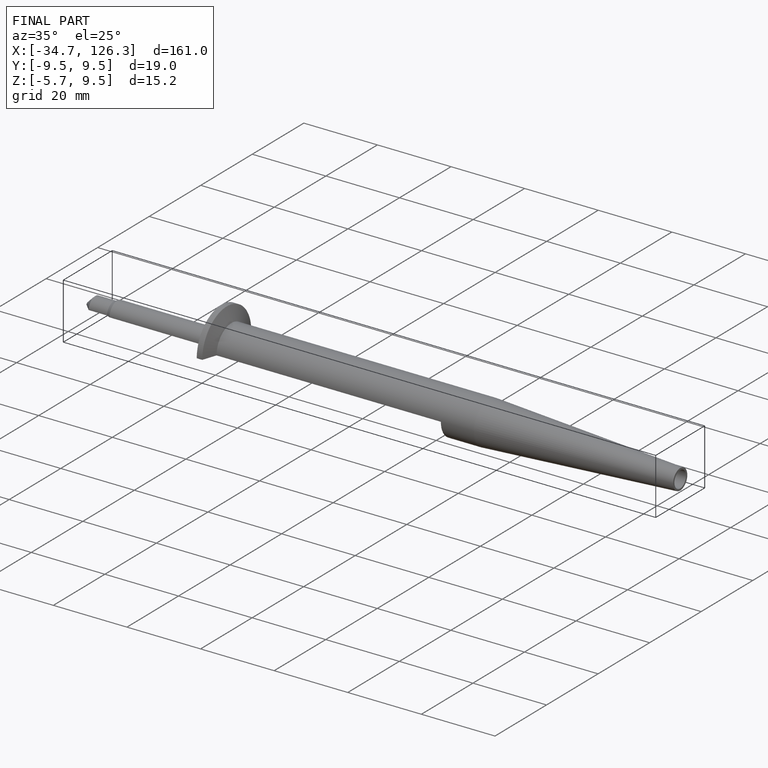
[diagram: finished part — iso view with bounding-box wireframe]
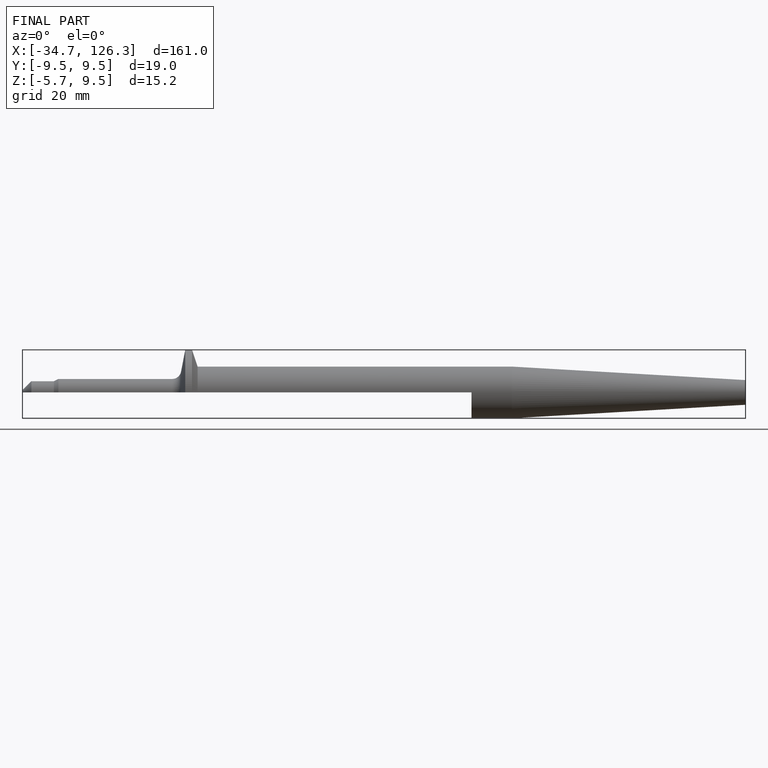
[diagram: finished part — front view with bounding-box wireframe]
